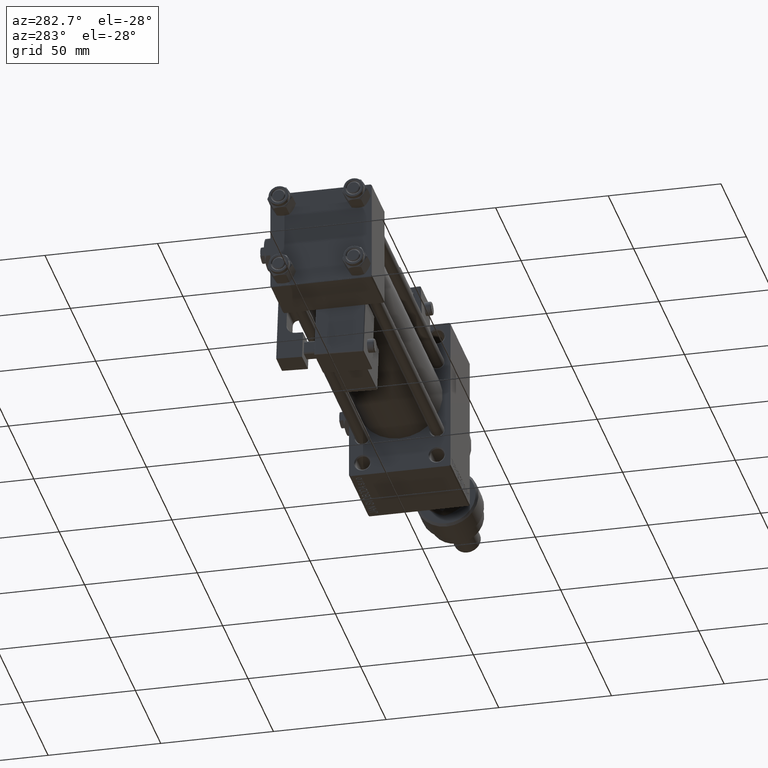
[diagram: clean part render]
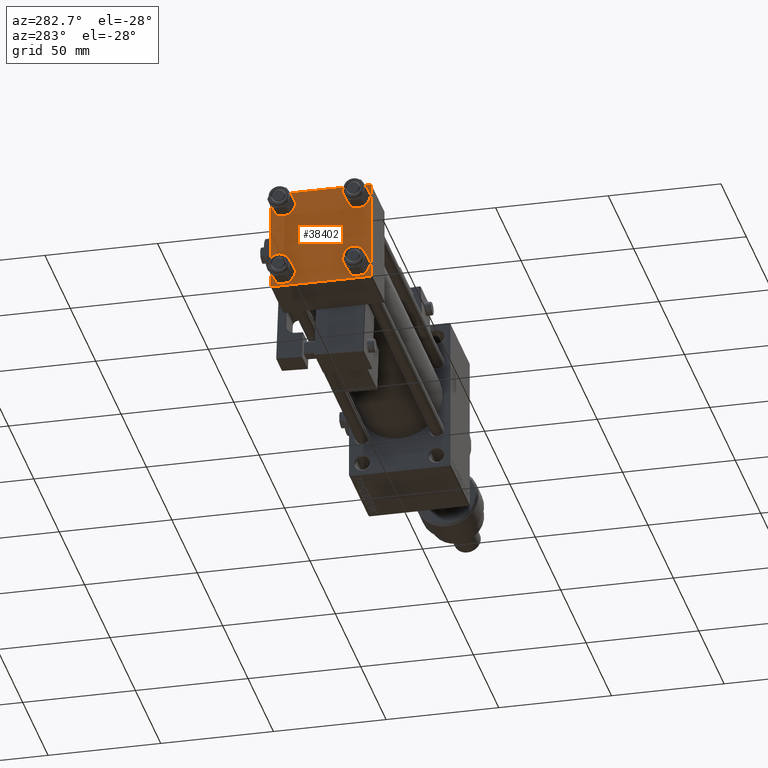
[diagram: same view with one face highlighted and labeled with its STEP entity id]
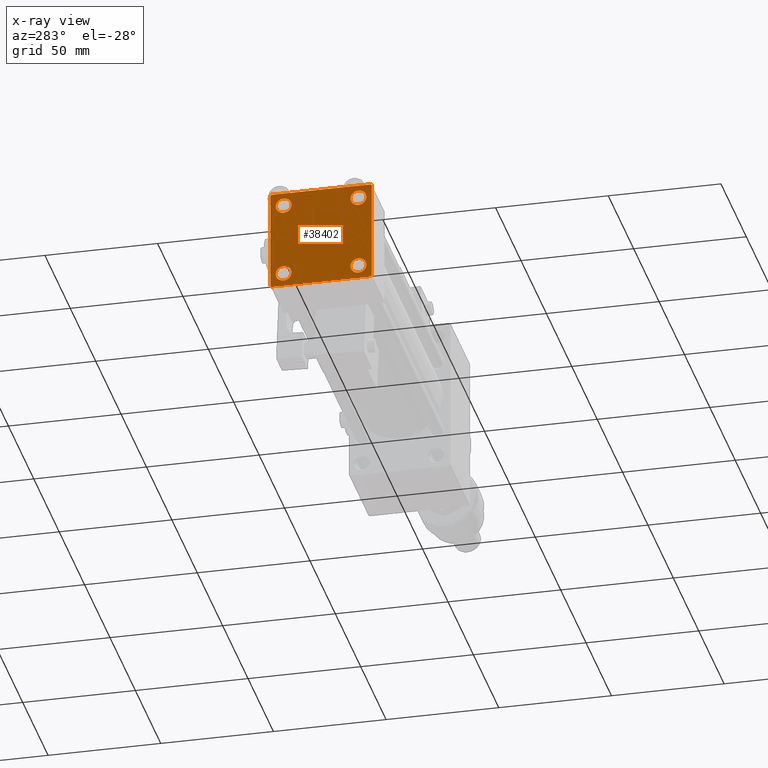
[diagram: x-ray of the same camera — body ghosted, the highlighted face saturated]
A machine part, auxiliary view. The second image highlights one B-rep face of the part: STEP entity #38402.
The next image is the same camera in x-ray: the body ghosted, the highlighted face saturated — about 0% of this face is hidden behind the body in this view.
In plain terms, the highlighted planar face has unit normal (-1, 0, 0).
Its self-contained STEP definition (entity closure, byte-faithful):
#350 = AXIS2_PLACEMENT_3D ( 'NONE', #39220, #52094, #40306 ) ;
#476 = PLANE ( 'NONE',  #22148 ) ;
#1059 = EDGE_LOOP ( 'NONE', ( #37466, #1715 ) ) ;
#1442 = AXIS2_PLACEMENT_3D ( 'NONE', #51638, #2034, #18191 ) ;
#1517 = CARTESIAN_POINT ( 'NONE',  ( 0.000000000000000000, 22.50000000000000000, 22.50000000000000355 ) ) ;
#1715 = ORIENTED_EDGE ( 'NONE', *, *, #12764, .T. ) ;
#1853 = DIRECTION ( 'NONE',  ( 0.000000000000000000, -1.000000000000000000, -7.709882115452476934E-17 ) ) ;
#2034 = DIRECTION ( 'NONE',  ( 1.000000000000000000, -0.000000000000000000, 0.000000000000000000 ) ) ;
#2826 = VECTOR ( 'NONE', #1853, 1000.000000000000000 ) ;
#3302 = EDGE_LOOP ( 'NONE', ( #6954, #30932, #5563, #52856, #29270, #39218, #45765, #3614 ) ) ;
#3614 = ORIENTED_EDGE ( 'NONE', *, *, #51163, .T. ) ;
#3681 = VERTEX_POINT ( 'NONE', #32899 ) ;
#4317 = DIRECTION ( 'NONE',  ( -0.000000000000000000, 0.000000000000000000, 1.000000000000000000 ) ) ;
#5009 = ORIENTED_EDGE ( 'NONE', *, *, #43071, .T. ) ;
#5150 = DIRECTION ( 'NONE',  ( 0.000000000000000000, 0.000000000000000000, 1.000000000000000000 ) ) ;
#5563 = ORIENTED_EDGE ( 'NONE', *, *, #29300, .T. ) ;
#5682 = DIRECTION ( 'NONE',  ( 0.000000000000000000, 0.7071067811865474617, -0.7071067811865474617 ) ) ;
#6150 = CARTESIAN_POINT ( 'NONE',  ( 0.000000000000000000, 16.59999999999999787, -20.10000000000000142 ) ) ;
#6444 = CARTESIAN_POINT ( 'NONE',  ( 0.000000000000000000, -16.59999999999999076, -13.10000000000001030 ) ) ;
#6825 = DIRECTION ( 'NONE',  ( 0.000000000000000000, 0.000000000000000000, 1.000000000000000000 ) ) ;
#6954 = ORIENTED_EDGE ( 'NONE', *, *, #12222, .T. ) ;
#7586 = CARTESIAN_POINT ( 'NONE',  ( 0.000000000000000000, -16.59999999999999076, -16.60000000000000853 ) ) ;
#8228 = CARTESIAN_POINT ( 'NONE',  ( 0.000000000000000000, -16.59999999999999076, 13.10000000000001030 ) ) ;
#9780 = EDGE_LOOP ( 'NONE', ( #34827, #44014 ) ) ;
#10583 = CARTESIAN_POINT ( 'NONE',  ( 0.000000000000000000, 22.50000000000000000, -21.99999999999996803 ) ) ;
#10933 = DIRECTION ( 'NONE',  ( 1.000000000000000000, -0.000000000000000000, 0.000000000000000000 ) ) ;
#11135 = CIRCLE ( 'NONE', #13759, 3.499999999999996003 ) ;
#11298 = CARTESIAN_POINT ( 'NONE',  ( 0.000000000000000000, 16.59999999999999787, -16.60000000000000497 ) ) ;
#12050 = AXIS2_PLACEMENT_3D ( 'NONE', #42715, #50665, #5150 ) ;
#12078 = DIRECTION ( 'NONE',  ( 0.000000000000000000, 0.000000000000000000, 1.000000000000000000 ) ) ;
#12222 = EDGE_CURVE ( 'NONE', #13006, #48875, #39071, .T. ) ;
#12573 = CARTESIAN_POINT ( 'NONE',  ( 0.000000000000000000, 22.50000000000000000, 21.99999999999999645 ) ) ;
#12764 = EDGE_CURVE ( 'NONE', #28520, #16241, #27829, .T. ) ;
#13006 = VERTEX_POINT ( 'NONE', #12573 ) ;
#13449 = AXIS2_PLACEMENT_3D ( 'NONE', #22176, #21898, #51235 ) ;
#13630 = CARTESIAN_POINT ( 'NONE',  ( 0.000000000000000000, 22.50000000000000000, 22.50000000000000355 ) ) ;
#13759 = AXIS2_PLACEMENT_3D ( 'NONE', #32037, #10933, #6825 ) ;
#14754 = EDGE_LOOP ( 'NONE', ( #51953, #52106 ) ) ;
#16241 = VERTEX_POINT ( 'NONE', #23005 ) ;
#16638 = FACE_OUTER_BOUND ( 'NONE', #3302, .T. ) ;
#17109 = VECTOR ( 'NONE', #38458, 1000.000000000000000 ) ;
#18168 = VECTOR ( 'NONE', #39547, 999.9999999999998863 ) ;
#18191 = DIRECTION ( 'NONE',  ( 0.000000000000000000, 0.000000000000000000, 1.000000000000000000 ) ) ;
#18219 = DIRECTION ( 'NONE',  ( 0.000000000000000000, 0.000000000000000000, -1.000000000000000000 ) ) ;
#18561 = CARTESIAN_POINT ( 'NONE',  ( 0.000000000000000000, 22.24999999999999645, 22.24999999999999645 ) ) ;
#18960 = CARTESIAN_POINT ( 'NONE',  ( -0.000000000000000000, -22.24999999999984013, 22.25000000000015277 ) ) ;
#19023 = VECTOR ( 'NONE', #18219, 1000.000000000000000 ) ;
#19780 = LINE ( 'NONE', #18960, #18168 ) ;
#19826 = VECTOR ( 'NONE', #5682, 1000.000000000000114 ) ;
#20496 = FACE_BOUND ( 'NONE', #37318, .T. ) ;
#20589 = VERTEX_POINT ( 'NONE', #36565 ) ;
#20885 = VERTEX_POINT ( 'NONE', #8228 ) ;
#21340 = VERTEX_POINT ( 'NONE', #39136 ) ;
#21726 = CARTESIAN_POINT ( 'NONE',  ( 0.000000000000000000, 22.25000000000014566, -22.24999999999984013 ) ) ;
#21898 = DIRECTION ( 'NONE',  ( 1.000000000000000000, -0.000000000000000000, 0.000000000000000000 ) ) ;
#22148 = AXIS2_PLACEMENT_3D ( 'NONE', #50099, #41874, #4317 ) ;
#22176 = CARTESIAN_POINT ( 'NONE',  ( 0.000000000000000000, -16.59999999999999076, 16.60000000000000853 ) ) ;
#22411 = CIRCLE ( 'NONE', #43432, 3.499999999999996003 ) ;
#22582 = CARTESIAN_POINT ( 'NONE',  ( 0.000000000000000000, -21.99999999999997868, 22.50000000000000000 ) ) ;
#22768 = DIRECTION ( 'NONE',  ( 0.000000000000000000, 0.000000000000000000, -1.000000000000000000 ) ) ;
#23005 = CARTESIAN_POINT ( 'NONE',  ( 0.000000000000000000, 16.59999999999999787, -13.10000000000000675 ) ) ;
#25842 = LINE ( 'NONE', #21726, #17109 ) ;
#27038 = CARTESIAN_POINT ( 'NONE',  ( 0.000000000000000000, 21.99999999999999289, -22.49999999999999645 ) ) ;
#27829 = CIRCLE ( 'NONE', #12050, 3.499999999999996003 ) ;
#28061 = EDGE_CURVE ( 'NONE', #21340, #37421, #42699, .T. ) ;
#28331 = CIRCLE ( 'NONE', #13449, 3.499999999999996003 ) ;
#28520 = VERTEX_POINT ( 'NONE', #6150 ) ;
#29202 = DIRECTION ( 'NONE',  ( 0.000000000000000000, -1.000000000000000000, -2.312964634635742957E-16 ) ) ;
#29245 = CIRCLE ( 'NONE', #350, 3.499999999999996003 ) ;
#29270 = ORIENTED_EDGE ( 'NONE', *, *, #36146, .F. ) ;
#29300 = EDGE_CURVE ( 'NONE', #50458, #34999, #33321, .T. ) ;
#29965 = VECTOR ( 'NONE', #29202, 1000.000000000000000 ) ;
#30524 = CARTESIAN_POINT ( 'NONE',  ( 0.000000000000000000, -22.50000000000000000, 22.00000000000000000 ) ) ;
#30653 = VERTEX_POINT ( 'NONE', #30524 ) ;
#30932 = ORIENTED_EDGE ( 'NONE', *, *, #45839, .T. ) ;
#31259 = LINE ( 'NONE', #51562, #31961 ) ;
#31360 = EDGE_CURVE ( 'NONE', #47507, #20885, #28331, .T. ) ;
#31961 = VECTOR ( 'NONE', #47727, 1000.000000000000000 ) ;
#31984 = LINE ( 'NONE', #18561, #19826 ) ;
#32037 = CARTESIAN_POINT ( 'NONE',  ( 0.000000000000000000, 16.59999999999999787, 16.60000000000000497 ) ) ;
#32077 = CIRCLE ( 'NONE', #1442, 3.499999999999996003 ) ;
#32791 = AXIS2_PLACEMENT_3D ( 'NONE', #11298, #44219, #48324 ) ;
#32869 = AXIS2_PLACEMENT_3D ( 'NONE', #46074, #41960, #12078 ) ;
#32899 = CARTESIAN_POINT ( 'NONE',  ( 0.000000000000000000, -22.50000000000000000, -21.99999999999997158 ) ) ;
#33321 = LINE ( 'NONE', #50056, #29965 ) ;
#34827 = ORIENTED_EDGE ( 'NONE', *, *, #31360, .T. ) ;
#34999 = VERTEX_POINT ( 'NONE', #35974 ) ;
#35974 = CARTESIAN_POINT ( 'NONE',  ( 0.000000000000000000, -21.99999999999997158, -22.50000000000000711 ) ) ;
#36146 = EDGE_CURVE ( 'NONE', #30653, #3681, #51552, .T. ) ;
#36565 = CARTESIAN_POINT ( 'NONE',  ( 0.000000000000000000, 16.59999999999999787, 20.10000000000000142 ) ) ;
#37203 = VERTEX_POINT ( 'NONE', #48963 ) ;
#37318 = EDGE_LOOP ( 'NONE', ( #39159, #5009 ) ) ;
#37421 = VERTEX_POINT ( 'NONE', #22582 ) ;
#37466 = ORIENTED_EDGE ( 'NONE', *, *, #43999, .T. ) ;
#38102 = CIRCLE ( 'NONE', #32869, 3.499999999999996003 ) ;
#38402 = ADVANCED_FACE ( 'NONE', ( #46258, #45728, #53687, #20496, #16638 ), #476, .T. ) ;
#38458 = DIRECTION ( 'NONE',  ( -0.000000000000000000, -0.7071067811865426878, -0.7071067811865524577 ) ) ;
#39071 = LINE ( 'NONE', #1517, #19023 ) ;
#39136 = CARTESIAN_POINT ( 'NONE',  ( 0.000000000000000000, 21.99999999999999289, 22.50000000000000355 ) ) ;
#39159 = ORIENTED_EDGE ( 'NONE', *, *, #49610, .T. ) ;
#39218 = ORIENTED_EDGE ( 'NONE', *, *, #53574, .T. ) ;
#39220 = CARTESIAN_POINT ( 'NONE',  ( 0.000000000000000000, 16.59999999999999787, 16.60000000000000497 ) ) ;
#39453 = VERTEX_POINT ( 'NONE', #47318 ) ;
#39547 = DIRECTION ( 'NONE',  ( -0.000000000000000000, 0.7071067811865525687, 0.7071067811865425767 ) ) ;
#40306 = DIRECTION ( 'NONE',  ( 0.000000000000000000, 0.000000000000000000, 1.000000000000000000 ) ) ;
#41874 = DIRECTION ( 'NONE',  ( -1.000000000000000000, 0.000000000000000000, -0.000000000000000000 ) ) ;
#41960 = DIRECTION ( 'NONE',  ( 1.000000000000000000, -0.000000000000000000, 0.000000000000000000 ) ) ;
#42699 = LINE ( 'NONE', #13630, #2826 ) ;
#42715 = CARTESIAN_POINT ( 'NONE',  ( 0.000000000000000000, 16.59999999999999787, -16.60000000000000497 ) ) ;
#43071 = EDGE_CURVE ( 'NONE', #39453, #20589, #29245, .T. ) ;
#43432 = AXIS2_PLACEMENT_3D ( 'NONE', #7586, #45155, #45417 ) ;
#43609 = CARTESIAN_POINT ( 'NONE',  ( 0.000000000000000000, -22.50000000000000000, 22.50000000000000000 ) ) ;
#43958 = VECTOR ( 'NONE', #22768, 1000.000000000000000 ) ;
#43999 = EDGE_CURVE ( 'NONE', #16241, #28520, #45055, .T. ) ;
#44014 = ORIENTED_EDGE ( 'NONE', *, *, #46191, .T. ) ;
#44219 = DIRECTION ( 'NONE',  ( 1.000000000000000000, -0.000000000000000000, 0.000000000000000000 ) ) ;
#45055 = CIRCLE ( 'NONE', #32791, 3.499999999999996003 ) ;
#45155 = DIRECTION ( 'NONE',  ( 1.000000000000000000, -0.000000000000000000, 0.000000000000000000 ) ) ;
#45190 = EDGE_CURVE ( 'NONE', #34999, #3681, #31259, .T. ) ;
#45417 = DIRECTION ( 'NONE',  ( 0.000000000000000000, 0.000000000000000000, 1.000000000000000000 ) ) ;
#45728 = FACE_BOUND ( 'NONE', #14754, .T. ) ;
#45765 = ORIENTED_EDGE ( 'NONE', *, *, #28061, .F. ) ;
#45839 = EDGE_CURVE ( 'NONE', #48875, #50458, #25842, .T. ) ;
#46074 = CARTESIAN_POINT ( 'NONE',  ( 0.000000000000000000, -16.59999999999999076, 16.60000000000000853 ) ) ;
#46191 = EDGE_CURVE ( 'NONE', #20885, #47507, #38102, .T. ) ;
#46258 = FACE_BOUND ( 'NONE', #9780, .T. ) ;
#46767 = EDGE_CURVE ( 'NONE', #37203, #52572, #22411, .T. ) ;
#47318 = CARTESIAN_POINT ( 'NONE',  ( 0.000000000000000000, 16.59999999999999787, 13.10000000000000675 ) ) ;
#47507 = VERTEX_POINT ( 'NONE', #47585 ) ;
#47585 = CARTESIAN_POINT ( 'NONE',  ( 0.000000000000000000, -16.59999999999999076, 20.10000000000000853 ) ) ;
#47727 = DIRECTION ( 'NONE',  ( 0.000000000000000000, -0.7071067811865426878, 0.7071067811865524577 ) ) ;
#48250 = EDGE_CURVE ( 'NONE', #52572, #37203, #32077, .T. ) ;
#48324 = DIRECTION ( 'NONE',  ( 0.000000000000000000, 0.000000000000000000, 1.000000000000000000 ) ) ;
#48875 = VERTEX_POINT ( 'NONE', #10583 ) ;
#48963 = CARTESIAN_POINT ( 'NONE',  ( 0.000000000000000000, -16.59999999999999076, -20.10000000000000497 ) ) ;
#49610 = EDGE_CURVE ( 'NONE', #20589, #39453, #11135, .T. ) ;
#50056 = CARTESIAN_POINT ( 'NONE',  ( 0.000000000000000000, 22.50000000000000000, -22.49999999999999645 ) ) ;
#50099 = CARTESIAN_POINT ( 'NONE',  ( 0.000000000000000000, 0.000000000000000000, 0.000000000000000000 ) ) ;
#50458 = VERTEX_POINT ( 'NONE', #27038 ) ;
#50665 = DIRECTION ( 'NONE',  ( 1.000000000000000000, -0.000000000000000000, 0.000000000000000000 ) ) ;
#51163 = EDGE_CURVE ( 'NONE', #21340, #13006, #31984, .T. ) ;
#51235 = DIRECTION ( 'NONE',  ( 0.000000000000000000, 0.000000000000000000, 1.000000000000000000 ) ) ;
#51552 = LINE ( 'NONE', #43609, #43958 ) ;
#51562 = CARTESIAN_POINT ( 'NONE',  ( 0.000000000000000000, -22.25000000000014566, -22.24999999999984013 ) ) ;
#51638 = CARTESIAN_POINT ( 'NONE',  ( 0.000000000000000000, -16.59999999999999076, -16.60000000000000853 ) ) ;
#51953 = ORIENTED_EDGE ( 'NONE', *, *, #48250, .T. ) ;
#52094 = DIRECTION ( 'NONE',  ( 1.000000000000000000, -0.000000000000000000, 0.000000000000000000 ) ) ;
#52106 = ORIENTED_EDGE ( 'NONE', *, *, #46767, .T. ) ;
#52572 = VERTEX_POINT ( 'NONE', #6444 ) ;
#52856 = ORIENTED_EDGE ( 'NONE', *, *, #45190, .T. ) ;
#53574 = EDGE_CURVE ( 'NONE', #30653, #37421, #19780, .T. ) ;
#53687 = FACE_BOUND ( 'NONE', #1059, .T. ) ;